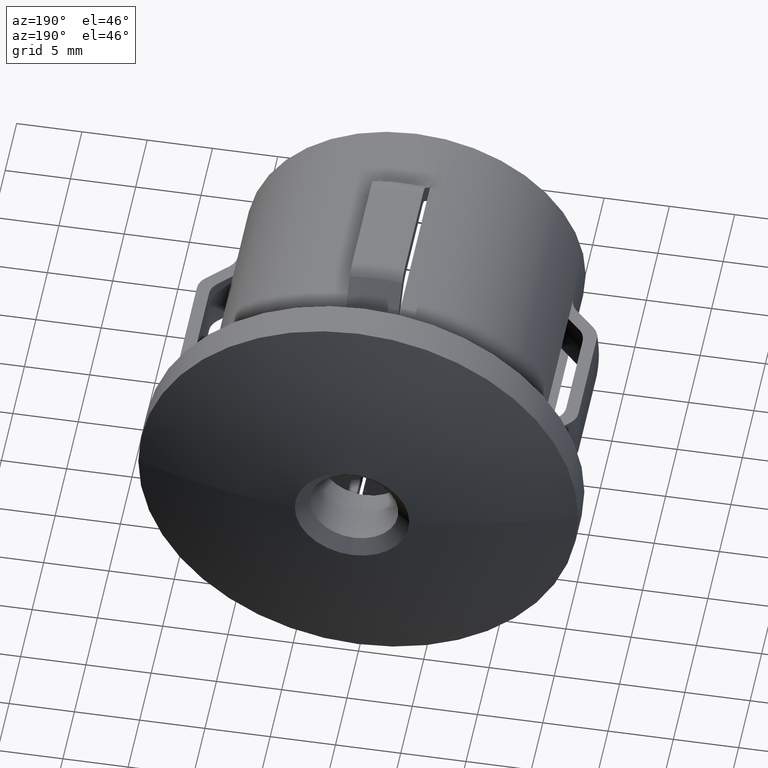
[diagram: clean part render]
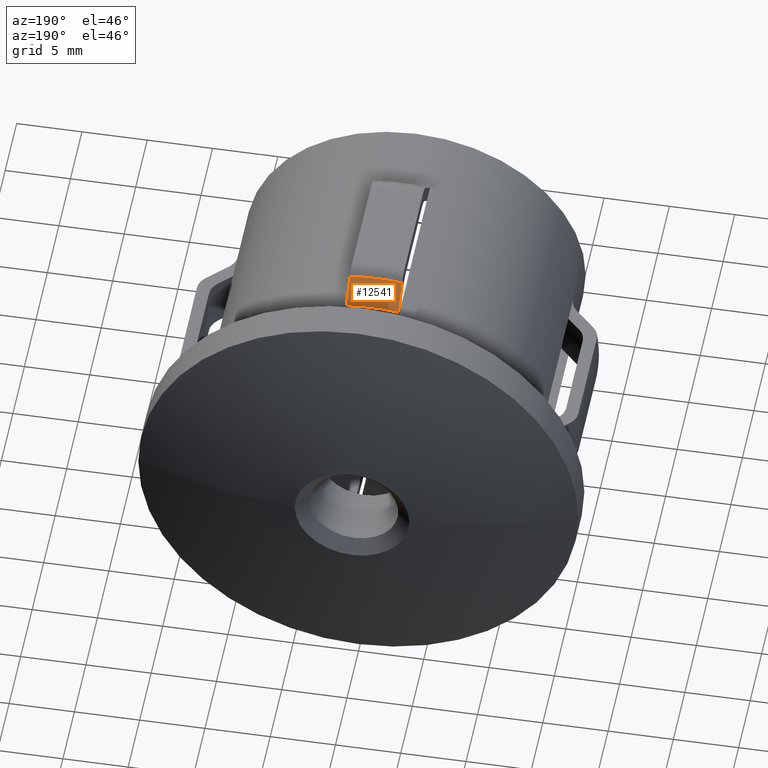
[diagram: same view with one face highlighted and labeled with its STEP entity id]
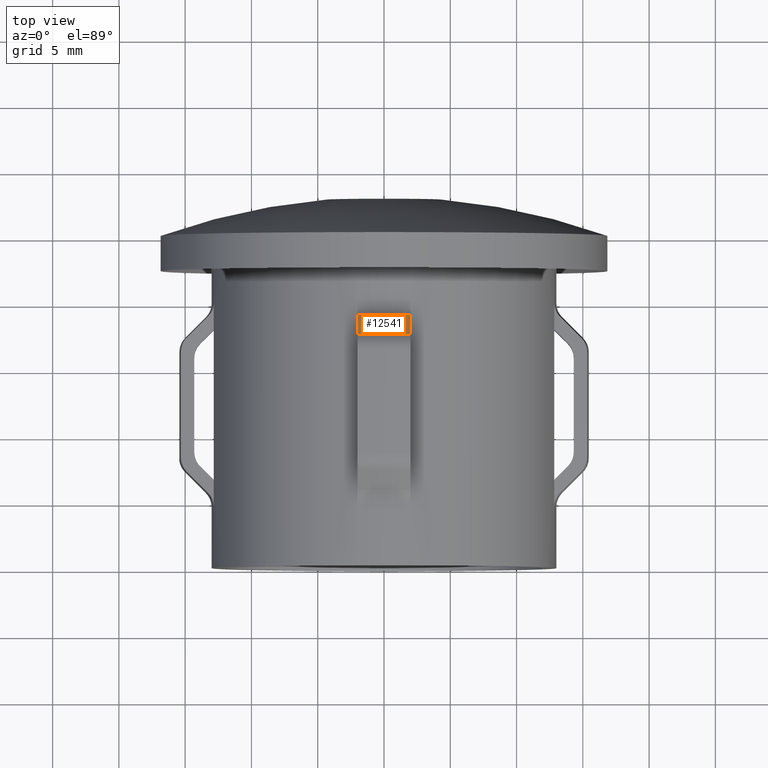
[diagram: same view with one face highlighted and labeled with its STEP entity id]
A machine part, auxiliary view. The second image highlights one B-rep face of the part: STEP entity #12541.
A second angle (top view) of the same face is appended — the face is thin or edge-on in the first view.
In plain terms, the highlighted conical surface has half-angle 45 deg.
Its self-contained STEP definition (entity closure, byte-faithful):
#204 = VERTEX_POINT ( 'NONE', #11846 ) ;
#553 = ORIENTED_EDGE ( 'NONE', *, *, #5745, .T. ) ;
#1067 = CONICAL_SURFACE ( 'NONE', #14842, 15.01066017177984000, 0.7853981633974521600 ) ;
#1365 = VERTEX_POINT ( 'NONE', #11147 ) ;
#1446 = DIRECTION ( 'NONE',  ( -2.904862207577519400E-015, -1.000000000000000000, -0.0000000000000000000 ) ) ;
#3539 = AXIS2_PLACEMENT_3D ( 'NONE', #8240, #15122, #6989 ) ;
#3963 = DIRECTION ( 'NONE',  ( 1.000000000000000000, -2.839716605078501700E-015, 0.0000000000000000000 ) ) ;
#4279 = CARTESIAN_POINT ( 'NONE',  ( 2.000000000000001800, 17.36801948466058200, 14.87682488949364100 ) ) ;
#4334 = ORIENTED_EDGE ( 'NONE', *, *, #7527, .F. ) ;
#4416 = EDGE_LOOP ( 'NONE', ( #553, #12289, #4334, #7409 ) ) ;
#5355 = CARTESIAN_POINT ( 'NONE',  ( -1.999999999999997800, 17.36801948466059300, 14.87682488949364600 ) ) ;
#5485 = EDGE_CURVE ( 'NONE', #204, #6211, #11416, .T. ) ;
#5745 = EDGE_CURVE ( 'NONE', #1365, #204, #16986, .T. ) ;
#5845 = CARTESIAN_POINT ( 'NONE',  ( 2.000000000000001800, 17.36801948466058200, 14.87682488949364100 ) ) ;
#6211 = VERTEX_POINT ( 'NONE', #5355 ) ;
#6739 = DIRECTION ( 'NONE',  ( -2.904862207577519400E-015, -1.000000000000000000, -0.0000000000000000000 ) ) ;
#6989 = DIRECTION ( 'NONE',  ( 1.000000000000000000, -3.004718637238262500E-015, 0.0000000000000000000 ) ) ;
#7022 = CARTESIAN_POINT ( 'NONE',  ( -1.999999999999997800, 17.36801948466059300, 14.87682488949364600 ) ) ;
#7036 = CARTESIAN_POINT ( 'NONE',  ( 2.000000000000001300, 18.41587932980719000, 13.81904478488030300 ) ) ;
#7141 = CARTESIAN_POINT ( 'NONE',  ( 2.000000000000001800, 17.89207268786339700, 14.34805718511838900 ) ) ;
#7409 = ORIENTED_EDGE ( 'NONE', *, *, #15499, .F. ) ;
#7527 = EDGE_CURVE ( 'NONE', #9710, #6211, #13783, .T. ) ;
#8229 = CARTESIAN_POINT ( 'NONE',  ( -2.362228287176620800E-014, 17.36801948466058900, 0.0000000000000000000 ) ) ;
#8240 = CARTESIAN_POINT ( 'NONE',  ( -2.362228287176620800E-014, 17.36801948466058900, 0.0000000000000000000 ) ) ;
#8260 = FACE_OUTER_BOUND ( 'NONE', #4416, .T. ) ;
#8394 = DIRECTION ( 'NONE',  ( 1.000000000000000000, -3.004718637238262500E-015, 0.0000000000000000000 ) ) ;
#9710 = VERTEX_POINT ( 'NONE', #4279 ) ;
#11147 = CARTESIAN_POINT ( 'NONE',  ( 2.000000000000001300, 18.93933982822020900, 13.28968980143576000 ) ) ;
#11156 = CARTESIAN_POINT ( 'NONE',  ( -1.999999999999998200, 18.41587932980720400, 13.81904478488030800 ) ) ;
#11416 = B_SPLINE_CURVE_WITH_KNOTS ( 'NONE', 3,
 ( #13933, #11156, #14050, #7022 ),
 .UNSPECIFIED., .F., .F.,
 ( 4, 4 ),
 ( 0.004956931541997176700, 0.007190321288002760000 ),
 .UNSPECIFIED. ) ;
#11846 = CARTESIAN_POINT ( 'NONE',  ( -1.999999999999998200, 18.93933982822022300, 13.28968980143576500 ) ) ;
#12289 = ORIENTED_EDGE ( 'NONE', *, *, #5485, .T. ) ;
#12541 = ADVANCED_FACE ( 'NONE', ( #8260 ), #1067, .T. ) ;
#13783 = CIRCLE ( 'NONE', #3539, 15.01066017177984000 ) ;
#13933 = CARTESIAN_POINT ( 'NONE',  ( -1.999999999999998200, 18.93933982822022300, 13.28968980143576500 ) ) ;
#14050 = CARTESIAN_POINT ( 'NONE',  ( -1.999999999999997800, 17.89207268786341100, 14.34805718511839400 ) ) ;
#14670 = B_SPLINE_CURVE_WITH_KNOTS ( 'NONE', 3,
 ( #15167, #7036, #7141, #5845 ),
 .UNSPECIFIED., .F., .F.,
 ( 4, 4 ),
 ( 0.004956931541997256500, 0.007190321288002834600 ),
 .UNSPECIFIED. ) ;
#14842 = AXIS2_PLACEMENT_3D ( 'NONE', #8229, #1446, #8394 ) ;
#14852 = CARTESIAN_POINT ( 'NONE',  ( -1.905781378976211800E-014, 18.93933982822021600, 0.0000000000000000000 ) ) ;
#15122 = DIRECTION ( 'NONE',  ( -2.904862207577519400E-015, -1.000000000000000000, -0.0000000000000000000 ) ) ;
#15167 = CARTESIAN_POINT ( 'NONE',  ( 2.000000000000001300, 18.93933982822020900, 13.28968980143576000 ) ) ;
#15499 = EDGE_CURVE ( 'NONE', #1365, #9710, #14670, .T. ) ;
#15787 = AXIS2_PLACEMENT_3D ( 'NONE', #14852, #6739, #3963 ) ;
#16986 = CIRCLE ( 'NONE', #15787, 13.43933982822019900 ) ;